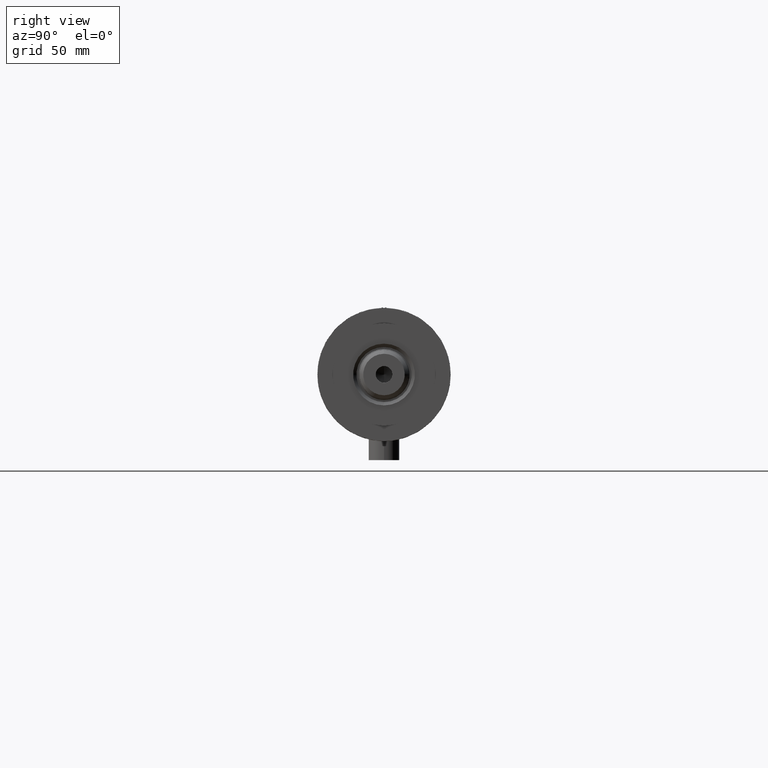
[diagram: clean part render]
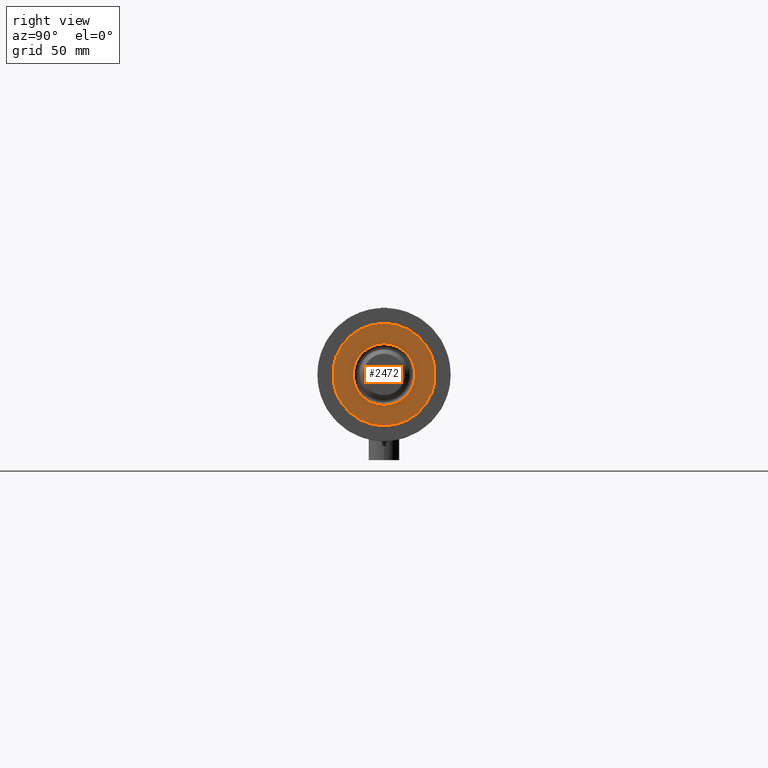
[diagram: same view with one face highlighted and labeled with its STEP entity id]
A machine part, right view. The second image highlights one B-rep face of the part: STEP entity #2472.
In plain terms, the highlighted planar face has unit normal (1, 0, -0).
Its self-contained STEP definition (entity closure, byte-faithful):
#53 = DIRECTION ( 'NONE',  ( 1.000000000000000000, 0.000000000000000000, 0.000000000000000000 ) ) ;
#76 = DIRECTION ( 'NONE',  ( 0.000000000000000000, 0.000000000000000000, 1.000000000000000000 ) ) ;
#115 = CARTESIAN_POINT ( 'NONE',  ( -12.05000000000000426, 1.475699392972560823E-15, 33.50000000000000000 ) ) ;
#117 = AXIS2_PLACEMENT_3D ( 'NONE', #1901, #4497, #1133 ) ;
#283 = CIRCLE ( 'NONE', #3010, 19.99999999999999645 ) ;
#355 = ORIENTED_EDGE ( 'NONE', *, *, #4303, .T. ) ;
#576 = EDGE_CURVE ( 'NONE', #4149, #1759, #4503, .T. ) ;
#650 = EDGE_LOOP ( 'NONE', ( #1484, #3858 ) ) ;
#1133 = DIRECTION ( 'NONE',  ( 1.000000000000000000, 0.000000000000000000, -0.000000000000000000 ) ) ;
#1142 = DIRECTION ( 'NONE',  ( 0.000000000000000000, 0.000000000000000000, 1.000000000000000000 ) ) ;
#1216 = AXIS2_PLACEMENT_3D ( 'NONE', #4842, #1478, #2967 ) ;
#1399 = CARTESIAN_POINT ( 'NONE',  ( 0.000000000000000000, 0.000000000000000000, 33.50000000000000000 ) ) ;
#1478 = DIRECTION ( 'NONE',  ( -0.000000000000000000, -0.000000000000000000, -1.000000000000000000 ) ) ;
#1484 = ORIENTED_EDGE ( 'NONE', *, *, #2015, .T. ) ;
#1679 = AXIS2_PLACEMENT_3D ( 'NONE', #3042, #1142, #2632 ) ;
#1698 = VERTEX_POINT ( 'NONE', #3574 ) ;
#1759 = VERTEX_POINT ( 'NONE', #2518 ) ;
#1881 = VERTEX_POINT ( 'NONE', #4439 ) ;
#1889 = EDGE_CURVE ( 'NONE', #1881, #1698, #283, .T. ) ;
#1901 = CARTESIAN_POINT ( 'NONE',  ( 0.000000000000000000, 0.000000000000000000, 33.50000000000000000 ) ) ;
#2015 = EDGE_CURVE ( 'NONE', #1698, #1881, #3802, .T. ) ;
#2095 = EDGE_LOOP ( 'NONE', ( #355, #4146 ) ) ;
#2264 = FACE_BOUND ( 'NONE', #2095, .T. ) ;
#2472 = ADVANCED_FACE ( 'NONE', ( #2264, #2991 ), #4576, .T. ) ;
#2518 = CARTESIAN_POINT ( 'NONE',  ( 12.05000000000000426, 0.000000000000000000, 33.50000000000000000 ) ) ;
#2590 = CARTESIAN_POINT ( 'NONE',  ( 0.000000000000000000, 0.000000000000000000, 33.50000000000000000 ) ) ;
#2632 = DIRECTION ( 'NONE',  ( 1.000000000000000000, 0.000000000000000000, 0.000000000000000000 ) ) ;
#2967 = DIRECTION ( 'NONE',  ( 1.000000000000000000, 0.000000000000000000, 0.000000000000000000 ) ) ;
#2991 = FACE_OUTER_BOUND ( 'NONE', #650, .T. ) ;
#3010 = AXIS2_PLACEMENT_3D ( 'NONE', #2590, #76, #53 ) ;
#3042 = CARTESIAN_POINT ( 'NONE',  ( 0.000000000000000000, 0.000000000000000000, 33.50000000000000000 ) ) ;
#3574 = CARTESIAN_POINT ( 'NONE',  ( -19.99999999999999645, 0.000000000000000000, 33.50000000000000000 ) ) ;
#3665 = DIRECTION ( 'NONE',  ( 1.000000000000000000, 0.000000000000000000, 0.000000000000000000 ) ) ;
#3802 = CIRCLE ( 'NONE', #1679, 19.99999999999999645 ) ;
#3838 = AXIS2_PLACEMENT_3D ( 'NONE', #1399, #4812, #3665 ) ;
#3858 = ORIENTED_EDGE ( 'NONE', *, *, #1889, .T. ) ;
#4000 = CIRCLE ( 'NONE', #3838, 12.05000000000000426 ) ;
#4146 = ORIENTED_EDGE ( 'NONE', *, *, #576, .T. ) ;
#4149 = VERTEX_POINT ( 'NONE', #115 ) ;
#4303 = EDGE_CURVE ( 'NONE', #1759, #4149, #4000, .T. ) ;
#4439 = CARTESIAN_POINT ( 'NONE',  ( 19.99999999999999645, 2.449293598294706119E-15, 33.50000000000000000 ) ) ;
#4497 = DIRECTION ( 'NONE',  ( 0.000000000000000000, 0.000000000000000000, 1.000000000000000000 ) ) ;
#4503 = CIRCLE ( 'NONE', #1216, 12.05000000000000426 ) ;
#4576 = PLANE ( 'NONE',  #117 ) ;
#4812 = DIRECTION ( 'NONE',  ( -0.000000000000000000, -0.000000000000000000, -1.000000000000000000 ) ) ;
#4842 = CARTESIAN_POINT ( 'NONE',  ( 0.000000000000000000, 0.000000000000000000, 33.50000000000000000 ) ) ;